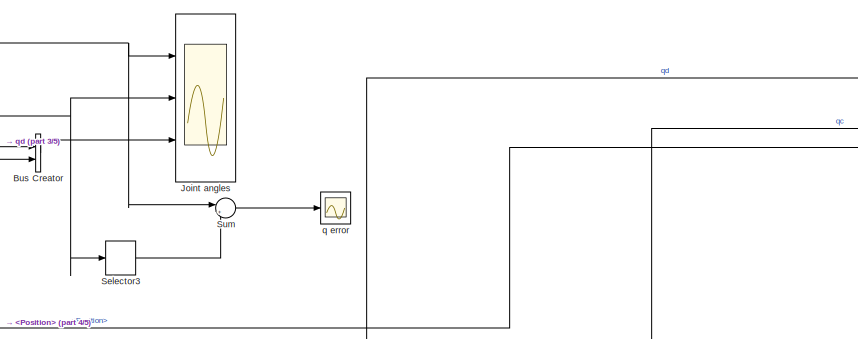
[diagram: root canvas - part 1/5, top center region]
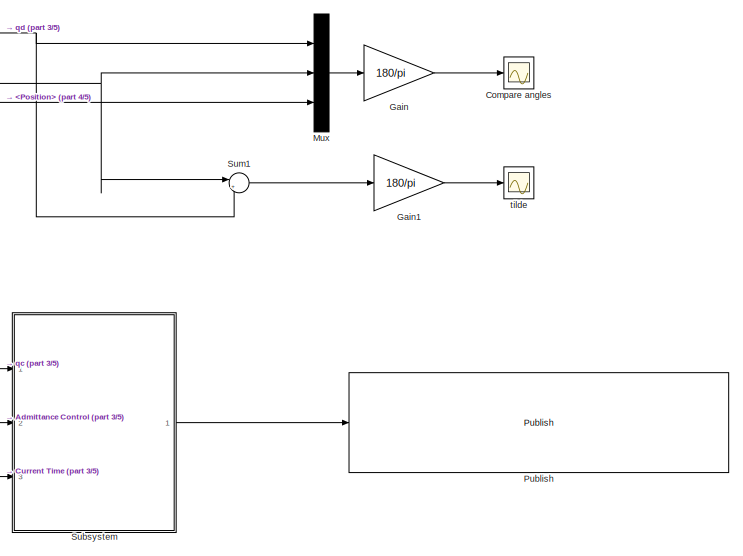
[diagram: root canvas - part 2/5, top right region]
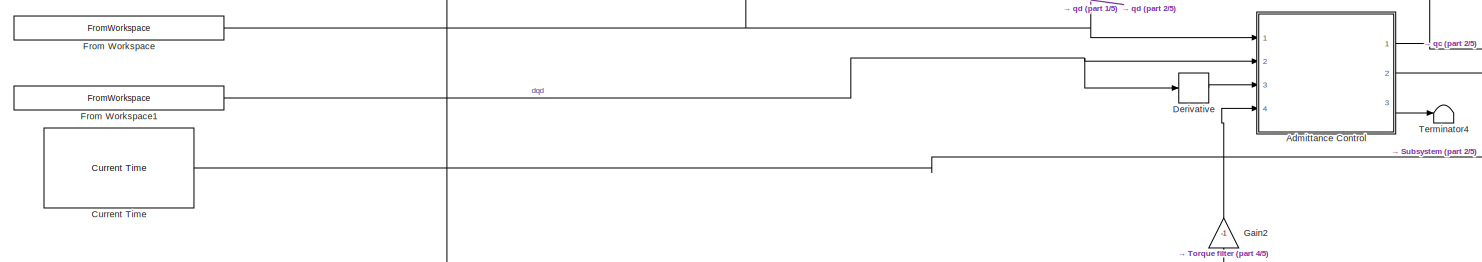
[diagram: root canvas - part 3/5, central region]
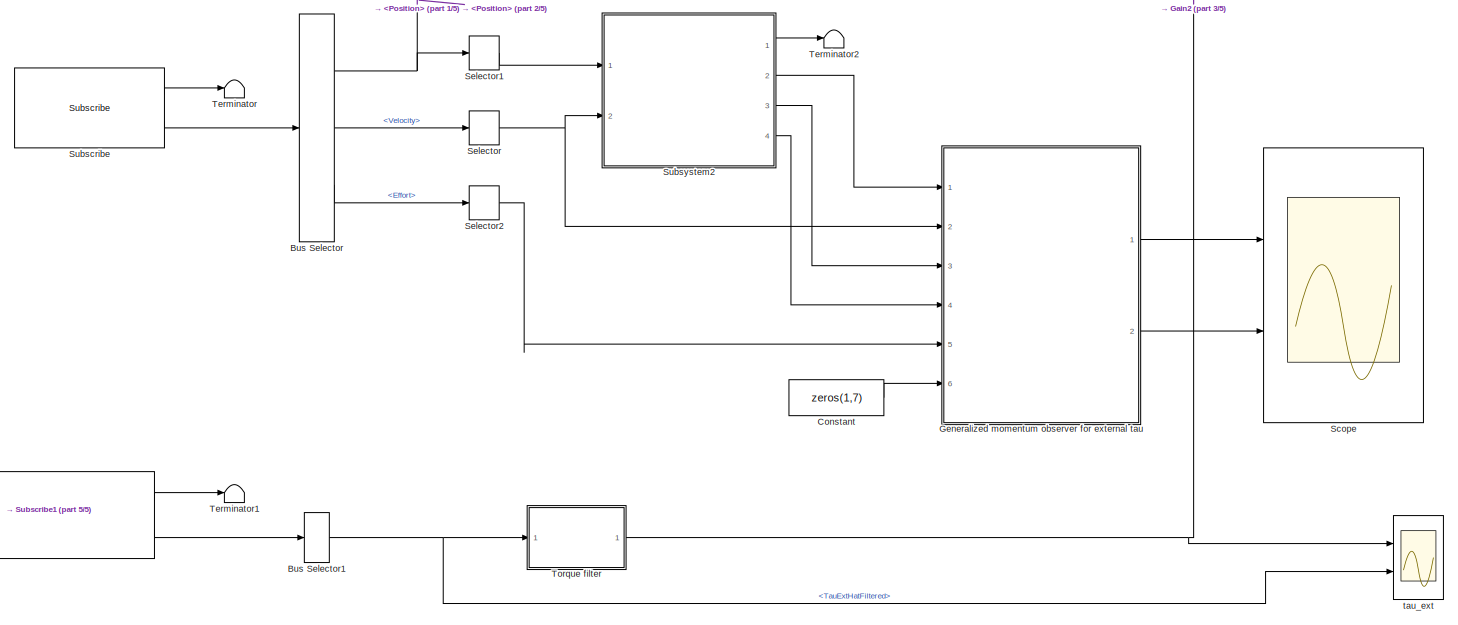
[diagram: root canvas - part 4/5, bottom center region]
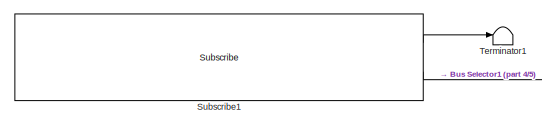
[diagram: root canvas - part 5/5, bottom left region]
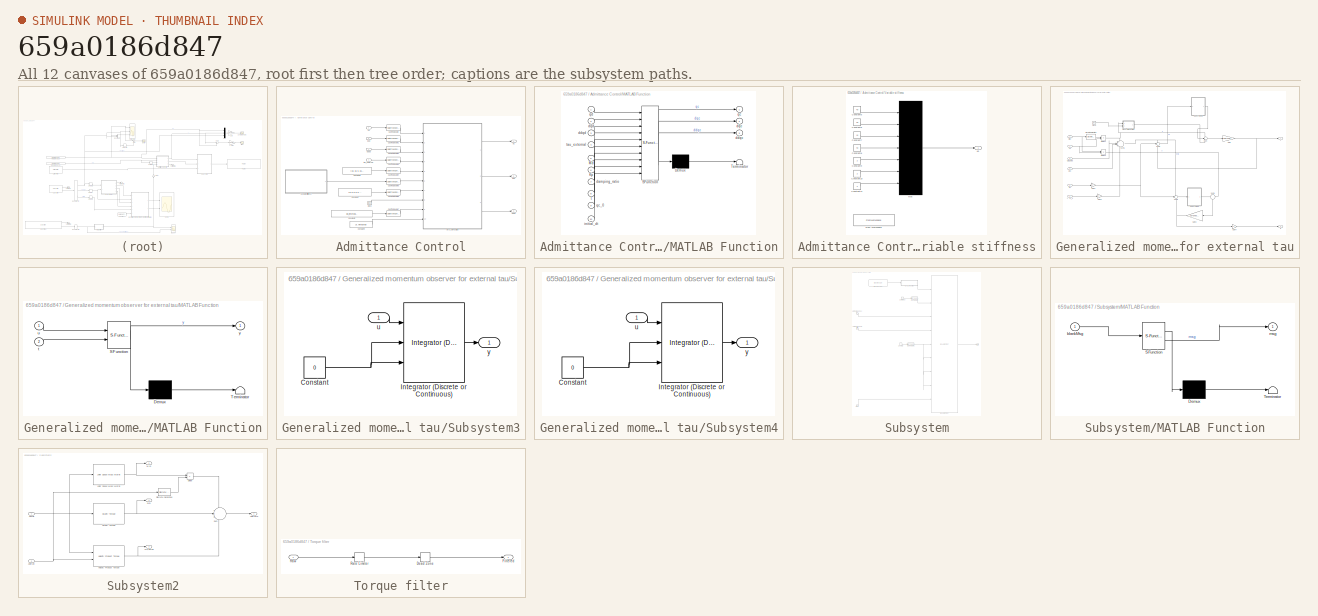
[diagram: thumbnail index - all 12 canvases of the model, root first then tree order]
MODEL slx_659a0186d847
KIND model
CONFIG AbsTol = auto
CONFIG EnableMultiTasking = off
CONFIG FixedStep = UI.timestep
CONFIG MaxStep = auto
CONFIG MinStep = auto
CONFIG RelTol = 1e-3
CONFIG SampleTimeConstraint = Unconstrained
CONFIG SolverName = FixedStepAuto
CONFIG StartTime = 0.0
CONFIG StopTime = UI.motion_duration
WORKSPACE source: mxarray member
WORKSPACE SL_ROS_VariableLengthArrays_MaxSizes: object (value not decoded)
BLOCK [SubSystem] Admittance Control
  Ports = [4, 3]
  RequestExecContextInheritance = off
BLOCK [DataTypeConversion] Admittance Control/Cast To Double
  OutDataTypeStr = double
  RndMeth = Floor
  SaturateOnIntegerOverflow = off
BLOCK [DataTypeConversion] Admittance Control/Cast To Double1
  OutDataTypeStr = double
  RndMeth = Floor
  SaturateOnIntegerOverflow = off
BLOCK [DataTypeConversion] Admittance Control/Cast To Double2
  OutDataTypeStr = double
  RndMeth = Floor
  SaturateOnIntegerOverflow = off
BLOCK [DataTypeConversion] Admittance Control/Cast To Double3
  OutDataTypeStr = double
  RndMeth = Floor
  SaturateOnIntegerOverflow = off
BLOCK [DataTypeConversion] Admittance Control/Cast To Double4
  OutDataTypeStr = double
  RndMeth = Floor
  SaturateOnIntegerOverflow = off
BLOCK [DataTypeConversion] Admittance Control/Cast To Double5
  OutDataTypeStr = double
  RndMeth = Floor
  SaturateOnIntegerOverflow = off
BLOCK [DataTypeConversion] Admittance Control/Cast To Double6
  OutDataTypeStr = double
  RndMeth = Floor
  SaturateOnIntegerOverflow = off
BLOCK [DataTypeConversion] Admittance Control/Cast To Double7
  OutDataTypeStr = double
  RndMeth = Floor
  SaturateOnIntegerOverflow = off
BLOCK [Clock] Admittance Control/Clock
BLOCK [Constant] Admittance Control/Constant1
  Value = [0.9 0.9 0.9 0.9 0.9 0.9 0.9]
BLOCK [Constant] Admittance Control/Constant2
  Value = qd_interpolated(1,:)
BLOCK [Constant] Admittance Control/Constant3
  Value = [15 15 5 15 1 1 1]
BLOCK [Constant] Admittance Control/Constant4
  Value = UI.timestep
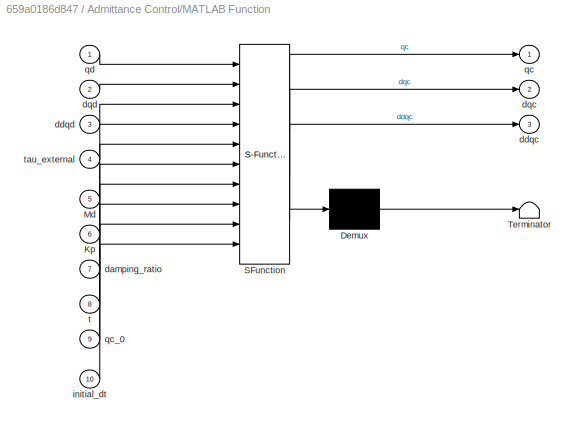
BLOCK [SubSystem] Admittance Control/MATLAB Function
  ErrorFcn = Stateflow.Translate.translate
  PermitHierarchicalResolution = ExplicitOnly
  Ports = [10, 3]
  RequestExecContextInheritance = off
  SFBlockType = MATLAB Function
  TreatAsAtomicUnit = on
BLOCK [Demux] Admittance Control/MATLAB Function/ Demux 
  Outputs = 1
  Ports = [1, 1]
BLOCK [S-Function] Admittance Control/MATLAB Function/ SFunction 
  EnableBusSupport = on
  FunctionName = sf_sfun
  PortCounts = [10 4]
  Ports = [10, 4]
  SFcnIsStateOwnerBlock = off
  SFunctionDeploymentMode = off
  Tag = Stateflow S-Function 4
BLOCK [Terminator] Admittance Control/MATLAB Function/ Terminator 
BLOCK [Inport] Admittance Control/MATLAB Function/Kp
  Port = 6
BLOCK [Inport] Admittance Control/MATLAB Function/Md
  Port = 5
BLOCK [Inport] Admittance Control/MATLAB Function/damping_ratio
  Port = 7
BLOCK [Outport] Admittance Control/MATLAB Function/ddqc
  Port = 3
BLOCK [Inport] Admittance Control/MATLAB Function/ddqd
  Port = 3
BLOCK [Outport] Admittance Control/MATLAB Function/dqc
  Port = 2
BLOCK [Inport] Admittance Control/MATLAB Function/dqd
  Port = 2
BLOCK [Inport] Admittance Control/MATLAB Function/initial_dt
  Port = 10
BLOCK [Outport] Admittance Control/MATLAB Function/qc
BLOCK [Inport] Admittance Control/MATLAB Function/qc_0
  Port = 9
BLOCK [Inport] Admittance Control/MATLAB Function/qd
BLOCK [Inport] Admittance Control/MATLAB Function/t
  Port = 8
BLOCK [Inport] Admittance Control/MATLAB Function/tau_external
  Port = 4
BLOCK [SubSystem] Admittance Control/Variable stiffness
  Ports = [0, 1]
  RequestExecContextInheritance = off
BLOCK [Constant] Admittance Control/Variable stiffness/Constant10
  Value = 2
BLOCK [Constant] Admittance Control/Variable stiffness/Constant11
  Value = 2
BLOCK [Constant] Admittance Control/Variable stiffness/Constant5
  Value = 40
BLOCK [Constant] Admittance Control/Variable stiffness/Constant6
  Value = 40
BLOCK [Constant] Admittance Control/Variable stiffness/Constant7
  Value = 15
BLOCK [Constant] Admittance Control/Variable stiffness/Constant8
  Value = 40
BLOCK [Constant] Admittance Control/Variable stiffness/Constant9
  Value = 2
BLOCK [FromWorkspace] Admittance Control/Variable stiffness/From Workspace
  Commented = on
  OutputAfterFinalValue = Holding final value
  SampleTime = dt
  VariableName = variable_stiffness
BLOCK [Outport] Admittance Control/Variable stiffness/Kp
BLOCK [Mux] Admittance Control/Variable stiffness/Mux
  DisplayOption = bar
  Inputs = 7
  Ports = [7, 1]
BLOCK [Outport] Admittance Control/ddqc
  Port = 3
BLOCK [Inport] Admittance Control/ddqd
  Port = 3
BLOCK [Outport] Admittance Control/dqc
  Port = 2
BLOCK [Inport] Admittance Control/dqd
  Port = 2
BLOCK [Outport] Admittance Control/qc
BLOCK [Inport] Admittance Control/qd
BLOCK [Inport] Admittance Control/tau_external
  Port = 4
BLOCK [BusCreator] Bus Creator
  DisplayOption = bar
  InheritFromInputs = on
  Inputs = 2
  Ports = [2, 1]
BLOCK [BusSelector] Bus Selector
  OutputSignals = Position,Velocity,Effort
  Ports = [1, 3]
BLOCK [BusSelector] Bus Selector1
  OutputSignals = TauExtHatFiltered
  Ports = [1, 1]
BLOCK [Scope] Compare angles
  Floating = off
  NumInputPorts = 1
  Ports = [1]
  ScopeSpecificationString = Simulink.scopes.TimeScopeBlockCfg('CurrentConfiguration', extmgr.ConfigurationSet(extmgr.Configuration('Core','General UI',true),extmgr.Configuration('Core','Source UI',true),extmgr.Configuration('Sources','WiredSimulink',true,'DataLoggingVariableName','ScopeData1'),extmgr.Configuration('Visuals','Time Domain',true,'SerializedDisplays',{struct('MinYLimReal','-168.82867','MaxYLimReal','100.95486','...<+1691ch>
BLOCK [Constant] Constant
  Commented = on
  Value = zeros(1,7)
BLOCK [Reference] Current Time  REF=robotlib/Current Time
  Ports = [0, 1]
  SourceBlock = robotlib/Current Time
  SourceProductBaseCode = RR
  SourceType = ros.slros.internal.block.CurrentTime
BLOCK [Derivative] Derivative
BLOCK [FromWorkspace] From Workspace
  SampleTime = UI.timestep
  VariableName = simulink_desired_joint_path
BLOCK [FromWorkspace] From Workspace1
  SampleTime = UI.timestep
  VariableName = simulink_desired_joint_path_velocity
BLOCK [Gain] Gain
  Gain = 180/pi
BLOCK [Gain] Gain1
  Gain = 180/pi
BLOCK [Gain] Gain2
  Gain = -1
  NameLocation = right
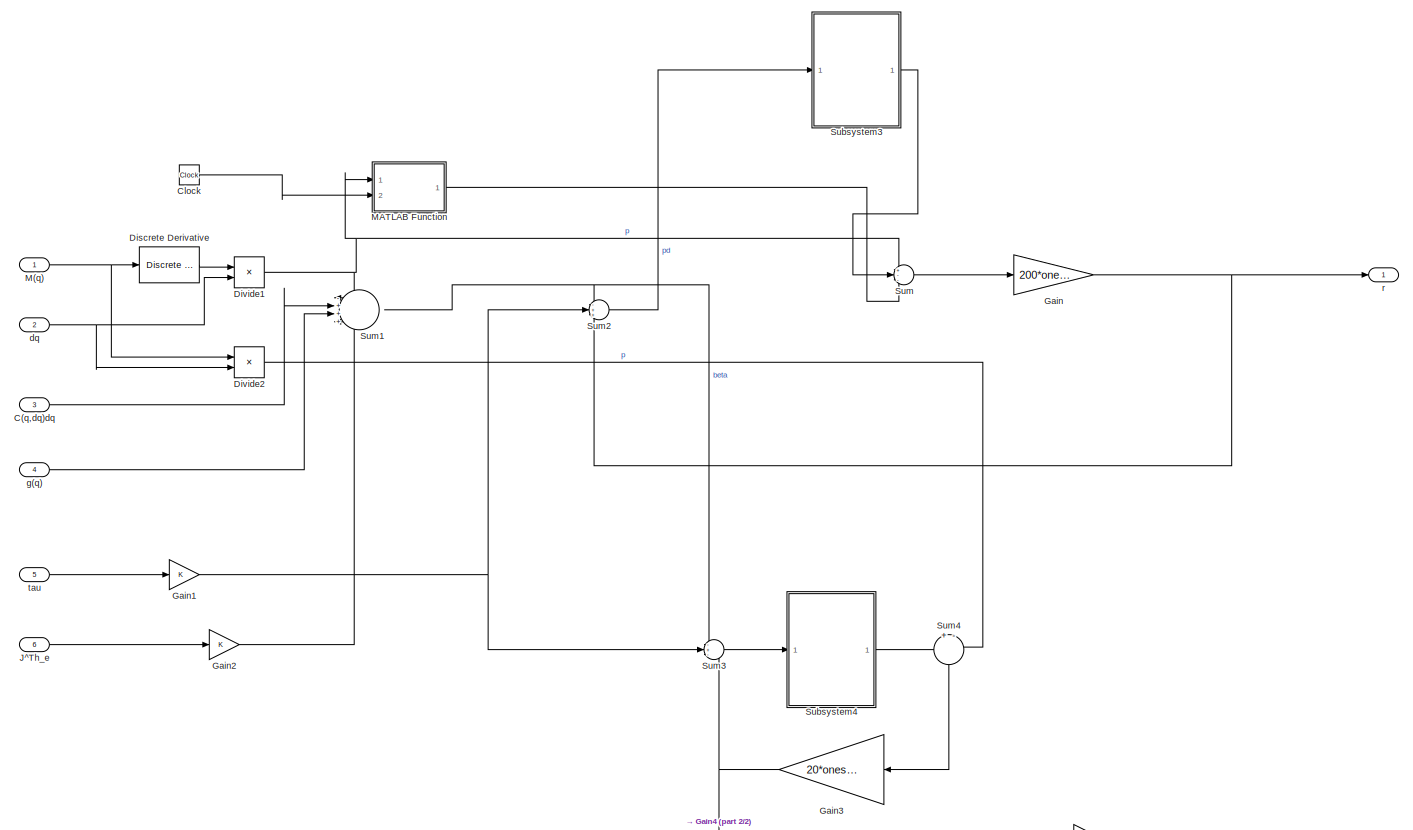
[diagram: Generalized momentum observer for external tau - part 1/2, most of the canvas]
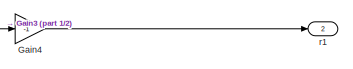
[diagram: Generalized momentum observer for external tau - part 2/2, bottom right region]
BLOCK [SubSystem] Generalized momentum observer for external tau
  Commented = on
  Ports = [6, 2]
  RequestExecContextInheritance = off
BLOCK [Inport] Generalized momentum observer for external tau/C(q,dq)dq
  Port = 3
BLOCK [Clock] Generalized momentum observer for external tau/Clock
  Commented = on
BLOCK [Reference] Generalized momentum observer for external tau/Discrete Derivative  REF=simulink/Discrete/Discrete Derivative
  Ports = [1, 1]
  SourceBlock = simulink/Discrete/Discrete Derivative
  SourceProductBaseCode = SL
  SourceType = Discrete Derivative
BLOCK [Product] Generalized momentum observer for external tau/Divide1
  Inputs = **
  Multiplication = Matrix(*)
  Ports = [2, 1]
BLOCK [Product] Generalized momentum observer for external tau/Divide2
  Inputs = **
  Multiplication = Matrix(*)
  Ports = [2, 1]
BLOCK [Gain] Generalized momentum observer for external tau/Gain
  Gain = 200*ones(7,1)
BLOCK [Gain] Generalized momentum observer for external tau/Gain1
BLOCK [Gain] Generalized momentum observer for external tau/Gain2
BLOCK [Gain] Generalized momentum observer for external tau/Gain3
  Gain = 20*ones(7,1)
  NameLocation = top
BLOCK [Gain] Generalized momentum observer for external tau/Gain4
  Gain = -1
BLOCK [Inport] Generalized momentum observer for external tau/J^Th_e
  Port = 6
BLOCK [Inport] Generalized momentum observer for external tau/M(q)
BLOCK [SubSystem] Generalized momentum observer for external tau/MATLAB Function
  Commented = on
  ErrorFcn = Stateflow.Translate.translate
  PermitHierarchicalResolution = ExplicitOnly
  Ports = [2, 1]
  RequestExecContextInheritance = off
  SFBlockType = MATLAB Function
  TreatAsAtomicUnit = on
BLOCK [Demux] Generalized momentum observer for external tau/MATLAB Function/ Demux 
  Outputs = 1
  Ports = [1, 1]
BLOCK [S-Function] Generalized momentum observer for external tau/MATLAB Function/ SFunction 
  EnableBusSupport = on
  FunctionName = sf_sfun
  PortCounts = [2 2]
  Ports = [2, 2]
  SFcnIsStateOwnerBlock = off
  SFunctionDeploymentMode = off
  Tag = Stateflow S-Function 1
BLOCK [Terminator] Generalized momentum observer for external tau/MATLAB Function/ Terminator 
BLOCK [Inport] Generalized momentum observer for external tau/MATLAB Function/t
  Port = 2
BLOCK [Inport] Generalized momentum observer for external tau/MATLAB Function/u
BLOCK [Outport] Generalized momentum observer for external tau/MATLAB Function/y
BLOCK [SubSystem] Generalized momentum observer for external tau/Subsystem3
  Ports = [1, 1]
  RequestExecContextInheritance = off
BLOCK [Constant] Generalized momentum observer for external tau/Subsystem3/Constant
  Value = 0
BLOCK [Reference] Generalized momentum observer for external tau/Subsystem3/Integrator (Discrete or Continuous)  REF=eeGeneralControl/Integrator
(Discrete or Continuous)
  Ports = [3, 1]
  SourceBlock = eeGeneralControl/Integrator\n(Discrete or Continuous)
  SourceProductBaseCode = PS
  SourceType = Integrator (Discrete or Continuous)
BLOCK [Inport] Generalized momentum observer for external tau/Subsystem3/u
BLOCK [Outport] Generalized momentum observer for external tau/Subsystem3/y
BLOCK [SubSystem] Generalized momentum observer for external tau/Subsystem4
  Ports = [1, 1]
  RequestExecContextInheritance = off
BLOCK [Constant] Generalized momentum observer for external tau/Subsystem4/Constant
  Value = 0
BLOCK [Reference] Generalized momentum observer for external tau/Subsystem4/Integrator (Discrete or Continuous)  REF=eeGeneralControl/Integrator
(Discrete or Continuous)
  Ports = [3, 1]
  SourceBlock = eeGeneralControl/Integrator\n(Discrete or Continuous)
  SourceProductBaseCode = PS
  SourceType = Integrator (Discrete or Continuous)
BLOCK [Inport] Generalized momentum observer for external tau/Subsystem4/u
BLOCK [Outport] Generalized momentum observer for external tau/Subsystem4/y
BLOCK [Sum] Generalized momentum observer for external tau/Sum
  Inputs = +--
  Ports = [3, 1]
BLOCK [Sum] Generalized momentum observer for external tau/Sum1
  Inputs = -+++
  Ports = [4, 1]
BLOCK [Sum] Generalized momentum observer for external tau/Sum2
  Inputs = -++
  Ports = [3, 1]
BLOCK [Sum] Generalized momentum observer for external tau/Sum3
  Inputs = -+-
  Ports = [3, 1]
BLOCK [Sum] Generalized momentum observer for external tau/Sum4
  Inputs = +-
  NameLocation = left
  Ports = [2, 1]
BLOCK [Inport] Generalized momentum observer for external tau/dq
  Port = 2
BLOCK [Inport] Generalized momentum observer for external tau/g(q)
  Port = 4
BLOCK [Outport] Generalized momentum observer for external tau/r
BLOCK [Outport] Generalized momentum observer for external tau/r1
  Port = 2
BLOCK [Inport] Generalized momentum observer for external tau/tau
  Port = 5
BLOCK [Scope] Joint angles
  Floating = off
  NumInputPorts = 3
  Ports = [3]
  ScopeSpecificationString = Simulink.scopes.TimeScopeBlockCfg('CurrentConfiguration', extmgr.ConfigurationSet(extmgr.Configuration('Core','General UI',true),extmgr.Configuration('Core','Source UI',true),extmgr.Configuration('Sources','WiredSimulink',true,'DataLoggingVariableName','ScopeData1','SampleTime','0.1'),extmgr.Configuration('Visuals','Time Domain',true,'SerializedDisplays',{struct('MinYLimReal','-3.38211','MaxYLimRe...<+3125ch>
BLOCK [Mux] Mux
  DisplayOption = bar
  Inputs = 3
  Ports = [3, 1]
BLOCK [Reference] Publish  REF=robotlib/Publish
  Ports = [1]
  SourceBlock = robotlib/Publish
  SourceProductBaseCode = RR
  SourceType = ROS Publish
BLOCK [Scope] Scope
  Commented = on
  Floating = off
  NumInputPorts = 2
  Ports = [2]
  ScopeSpecificationString = Simulink.scopes.TimeScopeBlockCfg('CurrentConfiguration', extmgr.ConfigurationSet(extmgr.Configuration('Core','General UI',true),extmgr.Configuration('Core','Source UI',true),extmgr.Configuration('Sources','WiredSimulink',true,'DataLoggingVariableName','ScopeData2'),extmgr.Configuration('Visuals','Time Domain',true),extmgr.Configuration('Tools','Plot Navigation',true),extmgr.Configuration('Tools',...<+40ch>
BLOCK [Selector] Selector
  Commented = on
  IndexOptions = Index vector (dialog)
  Indices = [3:9]
  InputPortWidth = 9
  OutputSizes = 1
  Ports = [1, 1]
BLOCK [Selector] Selector1
  Commented = on
  IndexOptions = Index vector (dialog)
  Indices = [3:9]
  InputPortWidth = 9
  OutputSizes = 1
  Ports = [1, 1]
BLOCK [Selector] Selector2
  Commented = on
  IndexOptions = Index vector (dialog)
  Indices = [3:9]
  InputPortWidth = 9
  OutputSizes = 1
  Ports = [1, 1]
BLOCK [Selector] Selector3
  IndexOptions = Index vector (dialog)
  Indices = [3:9]
  InputPortWidth = 9
  OutputSizes = 1
  Ports = [1, 1]
BLOCK [Reference] Subscribe  REF=robotlib/Subscribe
  Ports = [0, 2]
  SourceBlock = robotlib/Subscribe
  SourceProductBaseCode = RR
  SourceType = ROS Subscribe
BLOCK [Reference] Subscribe1  REF=robotlib/Subscribe
  Ports = [0, 2]
  SourceBlock = robotlib/Subscribe
  SourceProductBaseCode = RR
  SourceType = ROS Subscribe
BLOCK [SubSystem] Subsystem
  Ports = [3, 1]
  RequestExecContextInheritance = off
BLOCK [Reference] Subsystem/Blank Message1  REF=robotlib/Blank Message
  Ports = [0, 1]
  SourceBlock = robotlib/Blank Message
  SourceProductBaseCode = RR
  SourceType = ROS Blank Message
BLOCK [BusAssignment] Subsystem/Bus Assignment
  AssignedSignals = Mode,Position,Velocity,Velocity_SL_Info.ReceivedLength,Velocity_SL_Info.CurrentLength,Position_SL_Info.ReceivedLength,Position_SL_Info.CurrentLength,Header.Stamp
  Ports = [9, 1]
BLOCK [DataTypeConversion] Subsystem/Cast To Single1
  OutDataTypeStr = uint32
  RndMeth = Floor
  SaturateOnIntegerOverflow = off
BLOCK [DataTypeConversion] Subsystem/Cast To Single2
  OutDataTypeStr = int32
  RndMeth = Floor
  SaturateOnIntegerOverflow = off
BLOCK [Constant] Subsystem/Constant2
  Value = 7
BLOCK [Constant] Subsystem/Control mode
  Value = 4
BLOCK [Inport] Subsystem/JointCommandPositions
BLOCK [Inport] Subsystem/JointCommandVelocities
  Port = 2
BLOCK [SubSystem] Subsystem/MATLAB Function
  ErrorFcn = Stateflow.Translate.translate
  PermitHierarchicalResolution = ExplicitOnly
  Ports = [1, 1]
  RequestExecContextInheritance = off
  SFBlockType = MATLAB Function
  TreatAsAtomicUnit = on
BLOCK [Demux] Subsystem/MATLAB Function/ Demux 
  Outputs = 1
  Ports = [1, 1]
BLOCK [S-Function] Subsystem/MATLAB Function/ SFunction 
  EnableBusSupport = on
  FunctionName = sf_sfun
  PortCounts = [1 2]
  Ports = [1, 2]
  SFcnIsStateOwnerBlock = off
  SFunctionDeploymentMode = off
  Tag = Stateflow S-Function 2
BLOCK [Terminator] Subsystem/MATLAB Function/ Terminator 
BLOCK [Inport] Subsystem/MATLAB Function/blankMsg
BLOCK [Outport] Subsystem/MATLAB Function/msg
BLOCK [Inport] Subsystem/Stamp
  Port = 3
BLOCK [Outport] Subsystem/msg
BLOCK [SubSystem] Subsystem2
  Commented = on
  Ports = [2, 4]
  RequestExecContextInheritance = off
BLOCK [Outport] Subsystem2/C(q,dq)dq
  Port = 3
BLOCK [Inport] Subsystem2/Config
BLOCK [Reference] Subsystem2/Discrete Derivative  REF=simulink/Discrete/Discrete Derivative
  Ports = [1, 1]
  SourceBlock = simulink/Discrete/Discrete Derivative
  SourceProductBaseCode = SL
  SourceType = Discrete Derivative
BLOCK [Product] Subsystem2/Divide
  Inputs = **
  Multiplication = Matrix(*)
  Ports = [2, 1]
BLOCK [Outport] Subsystem2/G(q)
  Port = 4
BLOCK [Reference] Subsystem2/Gravity Torque  REF=robotmaniplib/Gravity Torque
  Ports = [1, 1]
  SourceBlock = robotmaniplib/Gravity Torque
  SourceProductBaseCode = RO
  SourceType = Gravity Torque
BLOCK [Reference] Subsystem2/Joint Space Mass Matrix  REF=robotmaniplib/Joint Space Mass Matrix
  Ports = [1, 1]
  SourceBlock = robotmaniplib/Joint Space Mass Matrix
  SourceProductBaseCode = RO
  SourceType = Joint Space Mass Matrix
BLOCK [Outport] Subsystem2/JointTorq
BLOCK [Inport] Subsystem2/JointVel
  Port = 2
BLOCK [Outport] Subsystem2/M(q)
  Port = 2
BLOCK [Sum] Subsystem2/Sum
  Inputs = +++
  Ports = [3, 1]
BLOCK [Reference] Subsystem2/Velocity Product Torque  REF=robotmaniplib/Velocity Product Torque
  Ports = [2, 1]
  SourceBlock = robotmaniplib/Velocity Product Torque
  SourceProductBaseCode = RO
  SourceType = Velocity Product Torque
BLOCK [Sum] Sum
  Inputs = |+-
  Ports = [2, 1]
BLOCK [Sum] Sum1
  Inputs = |+-
  Ports = [2, 1]
BLOCK [Terminator] Terminator
BLOCK [Terminator] Terminator1
BLOCK [Terminator] Terminator2
  Commented = on
BLOCK [Terminator] Terminator4
BLOCK [SubSystem] Torque filter
  Ports = [1, 1]
  RequestExecContextInheritance = off
BLOCK [DeadZone] Torque filter/Dead Zone
BLOCK [Outport] Torque filter/Filtered
BLOCK [RateLimiter] Torque filter/Rate Limiter
  FallingSlewLimit = -10
  RisingSlewLimit = 10
  SampleTimeMode = inherited
BLOCK [Inport] Torque filter/Raw
BLOCK [Scope] q error
  Floating = off
  NumInputPorts = 1
  Ports = [1]
  ScopeSpecificationString = Simulink.scopes.TimeScopeBlockCfg('CurrentConfiguration', extmgr.ConfigurationSet(extmgr.Configuration('Core','General UI',true),extmgr.Configuration('Core','Source UI',true),extmgr.Configuration('Sources','WiredSimulink',true,'DataLoggingVariableName','ScopeData1'),extmgr.Configuration('Visuals','Time Domain',true,'SerializedDisplays',{struct('MinYLimReal','-0.01352','MaxYLimReal','0.01456','YLab...<+1486ch>
BLOCK [Scope] tau_ext
  Floating = off
  NumInputPorts = 2
  Ports = [2]
  ScopeSpecificationString = Simulink.scopes.TimeScopeBlockCfg('CurrentConfiguration', extmgr.ConfigurationSet(extmgr.Configuration('Core','General UI',true),extmgr.Configuration('Core','Source UI',true),extmgr.Configuration('Sources','WiredSimulink',true,'DataLoggingVariableName','ScopeData1'),extmgr.Configuration('Visuals','Time Domain',true,'SerializedDisplays',{struct('MinYLimReal','-2.08399','MaxYLimReal','2.04351','YLab...<+2409ch>
BLOCK [Scope] tilde
  Floating = off
  NumInputPorts = 1
  Ports = [1]
  ScopeSpecificationString = Simulink.scopes.TimeScopeBlockCfg('CurrentConfiguration', extmgr.ConfigurationSet(extmgr.Configuration('Core','General UI',true),extmgr.Configuration('Core','Source UI',true),extmgr.Configuration('Sources','WiredSimulink',true,'DataLoggingVariableName','ScopeData2'),extmgr.Configuration('Visuals','Time Domain',true,'SerializedDisplays',{struct('MinYLimReal','-2.31353','MaxYLimReal','3.08236','YLab...<+1481ch>
LINE Admittance Control/Cast To Double1:1 -> Admittance Control/MATLAB Function:2
LINE Admittance Control/Cast To Double2:1 -> Admittance Control/MATLAB Function:3
LINE Admittance Control/Cast To Double3:1 -> Admittance Control/MATLAB Function:4
LINE Admittance Control/Cast To Double4:1 -> Admittance Control/MATLAB Function:5
LINE Admittance Control/Cast To Double5:1 -> Admittance Control/MATLAB Function:6
LINE Admittance Control/Cast To Double6:1 -> Admittance Control/MATLAB Function:7
LINE Admittance Control/Cast To Double7:1 -> Admittance Control/MATLAB Function:9
LINE Admittance Control/Cast To Double:1 -> Admittance Control/MATLAB Function:1
LINE Admittance Control/Clock:1 -> Admittance Control/MATLAB Function:8
LINE Admittance Control/Constant1:1 -> Admittance Control/Cast To Double6:1
LINE Admittance Control/Constant2:1 -> Admittance Control/Cast To Double7:1
LINE Admittance Control/Constant3:1 -> Admittance Control/Cast To Double4:1
LINE Admittance Control/Constant4:1 -> Admittance Control/MATLAB Function:10
LINE Admittance Control/MATLAB Function:1 -> Admittance Control/qc:1
LINE Admittance Control/MATLAB Function:2 -> Admittance Control/dqc:1
LINE Admittance Control/MATLAB Function:3 -> Admittance Control/ddqc:1
LINE Admittance Control/Variable stiffness/Constant10:1 -> Admittance Control/Variable stiffness/Mux:6
LINE Admittance Control/Variable stiffness/Constant11:1 -> Admittance Control/Variable stiffness/Mux:7
LINE Admittance Control/Variable stiffness/Constant5:1 -> Admittance Control/Variable stiffness/Mux:1
LINE Admittance Control/Variable stiffness/Constant6:1 -> Admittance Control/Variable stiffness/Mux:2
LINE Admittance Control/Variable stiffness/Constant7:1 -> Admittance Control/Variable stiffness/Mux:3
LINE Admittance Control/Variable stiffness/Constant8:1 -> Admittance Control/Variable stiffness/Mux:4
LINE Admittance Control/Variable stiffness/Constant9:1 -> Admittance Control/Variable stiffness/Mux:5
LINE Admittance Control/Variable stiffness/Mux:1 -> Admittance Control/Variable stiffness/Kp:1
LINE Admittance Control/Variable stiffness:1 -> Admittance Control/Cast To Double5:1
LINE Admittance Control/ddqd:1 -> Admittance Control/Cast To Double2:1
LINE Admittance Control/dqd:1 -> Admittance Control/Cast To Double1:1
LINE Admittance Control/qd:1 -> Admittance Control/Cast To Double:1
LINE Admittance Control/tau_external:1 -> Admittance Control/Cast To Double3:1
NET Admittance Control:1 -> Mux:2, Subsystem:1, Sum1:1
LINE Admittance Control:2 -> Subsystem:2
LINE Admittance Control:3 -> Terminator4:1
LINE Bus Creator:1 -> Joint angles:3
NET Bus Selector1:1 -> Torque filter:1, tau_ext:2
NET Bus Selector:1 -> Bus Creator:2, Joint angles:2, Mux:3, Selector1:1, Selector3:1
LINE Bus Selector:2 -> Selector:1
LINE Bus Selector:3 -> Selector2:1
LINE Constant:1 -> Generalized momentum observer for external tau:6
LINE Current Time:1 -> Subsystem:3
LINE Derivative:1 -> Admittance Control:3
NET From Workspace1:1 -> Admittance Control:2, Derivative:1
NET From Workspace:1 -> Admittance Control:1, Bus Creator:1, Joint angles:1, Mux:1, Sum1:2, Sum:1
LINE Gain1:1 -> tilde:1
LINE Gain2:1 -> Admittance Control:4
LINE Gain:1 -> Compare angles:1
LINE Generalized momentum observer for external tau/C(q,dq)dq:1 -> Generalized momentum observer for external tau/Sum1:2
LINE Generalized momentum observer for external tau/Clock:1 -> Generalized momentum observer for external tau/MATLAB Function:2
LINE Generalized momentum observer for external tau/Discrete Derivative:1 -> Generalized momentum observer for external tau/Divide1:1
NET Generalized momentum observer for external tau/Divide1:1 -> Generalized momentum observer for external tau/MATLAB Function:1, Generalized momentum observer for external tau/Sum1:1, Generalized momentum observer for external tau/Sum:1
LINE Generalized momentum observer for external tau/Divide2:1 -> Generalized momentum observer for external tau/Sum4:2
NET Generalized momentum observer for external tau/Gain1:1 -> Generalized momentum observer for external tau/Sum2:2, Generalized momentum observer for external tau/Sum3:2
LINE Generalized momentum observer for external tau/Gain2:1 -> Generalized momentum observer for external tau/Sum1:4
NET Generalized momentum observer for external tau/Gain3:1 -> Generalized momentum observer for external tau/Gain4:1, Generalized momentum observer for external tau/Sum3:3
LINE Generalized momentum observer for external tau/Gain4:1 -> Generalized momentum observer for external tau/r1:1
NET Generalized momentum observer for external tau/Gain:1 -> Generalized momentum observer for external tau/Sum2:3, Generalized momentum observer for external tau/r:1
LINE Generalized momentum observer for external tau/J^Th_e:1 -> Generalized momentum observer for external tau/Gain2:1
NET Generalized momentum observer for external tau/M(q):1 -> Generalized momentum observer for external tau/Discrete Derivative:1, Generalized momentum observer for external tau/Divide2:1
LINE Generalized momentum observer for external tau/MATLAB Function:1 -> Generalized momentum observer for external tau/Sum:3
NET Generalized momentum observer for external tau/Subsystem3/Constant:1 -> Generalized momentum observer for external tau/Subsystem3/Integrator (Discrete or Continuous):2, Generalized momentum observer for external tau/Subsystem3/Integrator (Discrete or Continuous):3
LINE Generalized momentum observer for external tau/Subsystem3/Integrator (Discrete or Continuous):1 -> Generalized momentum observer for external tau/Subsystem3/y:1
LINE Generalized momentum observer for external tau/Subsystem3/u:1 -> Generalized momentum observer for external tau/Subsystem3/Integrator (Discrete or Continuous):1
LINE Generalized momentum observer for external tau/Subsystem3:1 -> Generalized momentum observer for external tau/Sum:2
NET Generalized momentum observer for external tau/Subsystem4/Constant:1 -> Generalized momentum observer for external tau/Subsystem4/Integrator (Discrete or Continuous):2, Generalized momentum observer for external tau/Subsystem4/Integrator (Discrete or Continuous):3
LINE Generalized momentum observer for external tau/Subsystem4/Integrator (Discrete or Continuous):1 -> Generalized momentum observer for external tau/Subsystem4/y:1
LINE Generalized momentum observer for external tau/Subsystem4/u:1 -> Generalized momentum observer for external tau/Subsystem4/Integrator (Discrete or Continuous):1
LINE Generalized momentum observer for external tau/Subsystem4:1 -> Generalized momentum observer for external tau/Sum4:1
NET Generalized momentum observer for external tau/Sum1:1 -> Generalized momentum observer for external tau/Sum2:1, Generalized momentum observer for external tau/Sum3:1
LINE Generalized momentum observer for external tau/Sum2:1 -> Generalized momentum observer for external tau/Subsystem3:1
LINE Generalized momentum observer for external tau/Sum3:1 -> Generalized momentum observer for external tau/Subsystem4:1
LINE Generalized momentum observer for external tau/Sum4:1 -> Generalized momentum observer for external tau/Gain3:1
LINE Generalized momentum observer for external tau/Sum:1 -> Generalized momentum observer for external tau/Gain:1
NET Generalized momentum observer for external tau/dq:1 -> Generalized momentum observer for external tau/Divide1:2, Generalized momentum observer for external tau/Divide2:2
LINE Generalized momentum observer for external tau/g(q):1 -> Generalized momentum observer for external tau/Sum1:3
LINE Generalized momentum observer for external tau/tau:1 -> Generalized momentum observer for external tau/Gain1:1
LINE Generalized momentum observer for external tau:1 -> Scope:1
LINE Generalized momentum observer for external tau:2 -> Scope:2
LINE Mux:1 -> Gain:1
LINE Selector1:1 -> Subsystem2:1
LINE Selector2:1 -> Generalized momentum observer for external tau:5
LINE Selector3:1 -> Sum:2
NET Selector:1 -> Generalized momentum observer for external tau:2, Subsystem2:2
LINE Subscribe1:1 -> Terminator1:1
LINE Subscribe1:2 -> Bus Selector1:1
LINE Subscribe:1 -> Terminator:1
LINE Subscribe:2 -> Bus Selector:1
LINE Subsystem/Blank Message1:1 -> Subsystem/MATLAB Function:1
LINE Subsystem/Bus Assignment:1 -> Subsystem/msg:1
NET Subsystem/Cast To Single1:1 -> Subsystem/Bus Assignment:5, Subsystem/Bus Assignment:6, Subsystem/Bus Assignment:7, Subsystem/Bus Assignment:8
LINE Subsystem/Cast To Single2:1 -> Subsystem/Bus Assignment:2
LINE Subsystem/Constant2:1 -> Subsystem/Cast To Single1:1
LINE Subsystem/Control mode:1 -> Subsystem/Cast To Single2:1
LINE Subsystem/JointCommandPositions:1 -> Subsystem/Bus Assignment:3
LINE Subsystem/JointCommandVelocities:1 -> Subsystem/Bus Assignment:4
LINE Subsystem/MATLAB Function:1 -> Subsystem/Bus Assignment:1
LINE Subsystem/Stamp:1 -> Subsystem/Bus Assignment:9
NET Subsystem2/Config:1 -> Subsystem2/Gravity Torque:1, Subsystem2/Joint Space Mass Matrix:1, Subsystem2/Velocity Product Torque:1
LINE Subsystem2/Discrete Derivative:1 -> Subsystem2/Divide:2
LINE Subsystem2/Divide:1 -> Subsystem2/Sum:1
NET Subsystem2/Gravity Torque:1 -> Subsystem2/G(q):1, Subsystem2/Sum:2
NET Subsystem2/Joint Space Mass Matrix:1 -> Subsystem2/Divide:1, Subsystem2/M(q):1
NET Subsystem2/JointVel:1 -> Subsystem2/Discrete Derivative:1, Subsystem2/Velocity Product Torque:2
LINE Subsystem2/Sum:1 -> Subsystem2/JointTorq:1
NET Subsystem2/Velocity Product Torque:1 -> Subsystem2/C(q,dq)dq:1, Subsystem2/Sum:3
LINE Subsystem2:1 -> Terminator2:1
LINE Subsystem2:2 -> Generalized momentum observer for external tau:1
LINE Subsystem2:3 -> Generalized momentum observer for external tau:3
LINE Subsystem2:4 -> Generalized momentum observer for external tau:4
LINE Subsystem:1 -> Publish:1
LINE Sum1:1 -> Gain1:1
LINE Sum:1 -> q error:1
LINE Torque filter/Dead Zone:1 -> Torque filter/Filtered:1
LINE Torque filter/Rate Limiter:1 -> Torque filter/Dead Zone:1
LINE Torque filter/Raw:1 -> Torque filter/Rate Limiter:1
NET Torque filter:1 -> Gain2:1, tau_ext:1
note: NET lines group one-source signal fan-out (src -> all destinations, sorted); 1:1 wires keep LINE
CHART Generalized momentum observer for external tau/MATLAB Function states=1 transitions=1
  STATE_LABEL 'eML_blk_kernel()'
  STATE_LABEL 'SCRIPT:\nfunction y = fcn(u,t)\n\npersistent u_0\nif isempty(u_0)\n    u_0 = u;\nend\n\nif t > 0.01\n    y = u_0;\nelse\n    y = zeros(size(u));\n    u_0 = u;\nend'
CHART Subsystem/MATLAB Function states=1 transitions=1
  STATE_LABEL 'eML_blk_kernel()'
  STATE_LABEL "SCRIPT:\nfunction msg = stringArrayAssign(blankMsg)\n% stringArrayAssign - Assign a string array in a ROS message\n%\n%  blankMsg (input): A bus for a 'sensor_msgs/JointState' message. This is \n%      used to initialize the output.\n%  msg (output): A bus for a 'sensor_msgs/JointState' message message, with \n%      Name field set to a string array.\n%\n%   <copyright redacted>\n%\n% Used by M...<+1330ch>"
CHART Admittance Control/MATLAB Function states=1 transitions=1
  STATE_LABEL 'eML_blk_kernel()'
  STATE_LABEL 'SCRIPT:\nfunction [qc,dqc, ddqc] = admittance_control(qd,dqd,ddqd,tau_external, ...\n    Md, Kp,damping_ratio, ...\n    t, qc_0, initial_dt)\n\nKd = 2*damping_ratio.*sqrt(Md.*Kp);\n\npersistent dqc_prev qc_prev ddqc_prev t_prev\nif isempty(dqc_prev)\n    dqc_prev = dqd;\n    qc_prev = qc_0;\n    ddqc_prev = ddqd;\n    t_prev = t;\n    delta_t = initial_dt;\nelse\n    delta_t = t-t_prev;\nend\n\n\n%% Integrate\ndqc = ...<+285ch>'
CHART  states=0 transitions=0
CHART  states=0 transitions=0
CHART  states=0 transitions=0
